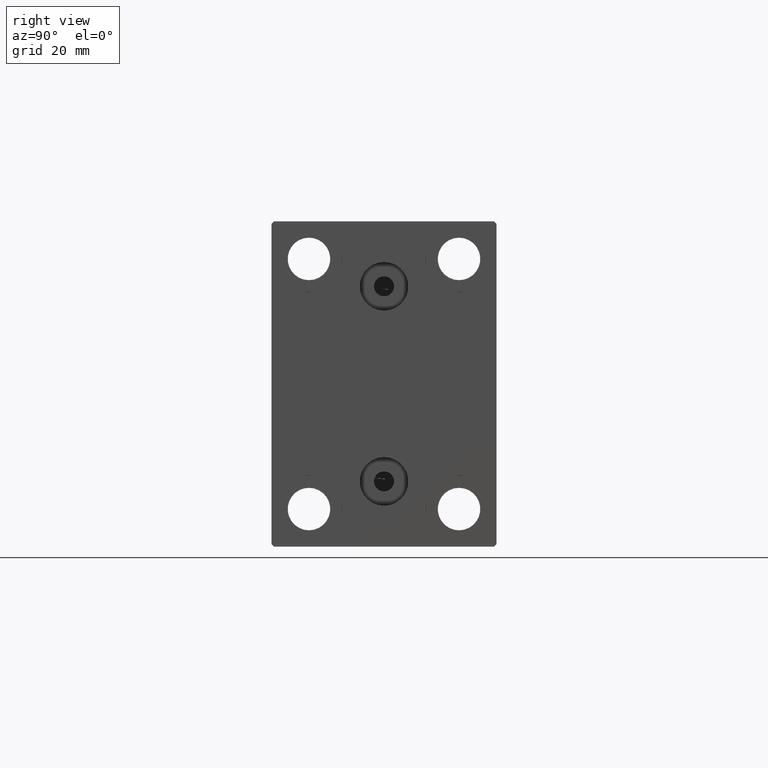
[diagram: clean part render]
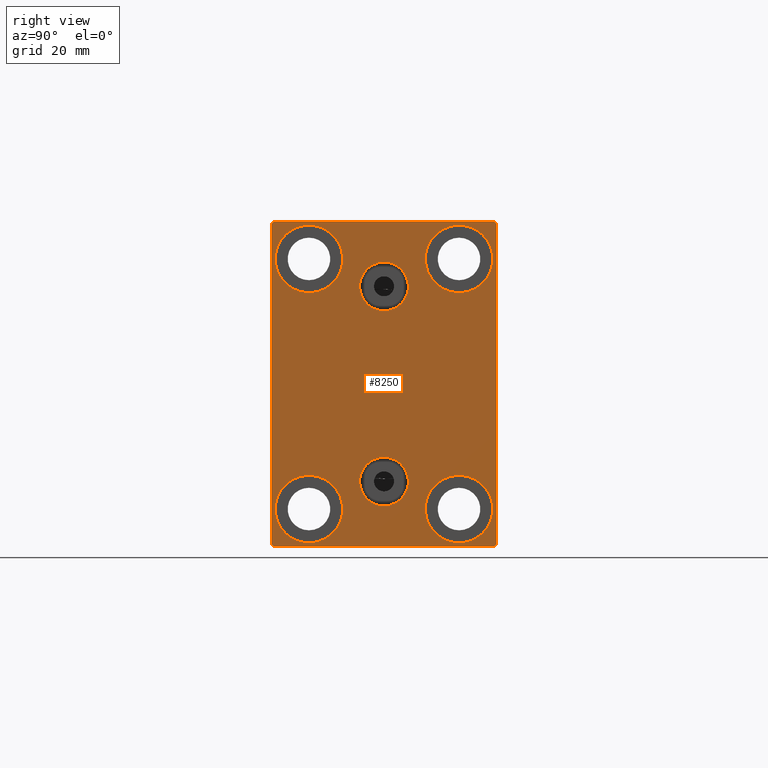
[diagram: same view with one face highlighted and labeled with its STEP entity id]
A machine part, right view. The second image highlights one B-rep face of the part: STEP entity #8250.
In plain terms, the highlighted planar face has unit normal (1, 0, 0).
Its self-contained STEP definition (entity closure, byte-faithful):
#26 = VERTEX_POINT ( 'NONE', #20619 ) ;
#40 = CIRCLE ( 'NONE', #39908, 6.749999999999999112 ) ;
#208 = VERTEX_POINT ( 'NONE', #20096 ) ;
#478 = DIRECTION ( 'NONE',  ( 0.000000000000000000, 0.000000000000000000, -1.000000000000000000 ) ) ;
#863 = DIRECTION ( 'NONE',  ( -0.000000000000000000, 0.7071067811865376918, 0.7071067811865574537 ) ) ;
#1539 = DIRECTION ( 'NONE',  ( -0.000000000000000000, -0.7071067811865425767, 0.7071067811865525687 ) ) ;
#1972 = CARTESIAN_POINT ( 'NONE',  ( 60.00000000000000000, 22.50000000000000000, -31.99999999999999289 ) ) ;
#2179 = DIRECTION ( 'NONE',  ( 0.000000000000000000, 0.000000000000000000, 1.000000000000000000 ) ) ;
#3007 = AXIS2_PLACEMENT_3D ( 'NONE', #19869, #37766, #2179 ) ;
#3100 = CARTESIAN_POINT ( 'NONE',  ( 60.00000000000000000, -3.571693674697836683E-15, 19.50000000000000355 ) ) ;
#3246 = FACE_BOUND ( 'NONE', #24140, .T. ) ;
#3705 = DIRECTION ( 'NONE',  ( 1.000000000000000000, 0.000000000000000000, -0.000000000000000000 ) ) ;
#3943 = CARTESIAN_POINT ( 'NONE',  ( 60.00000000000000000, 2.388061258337338150E-15, -19.49999999999999645 ) ) ;
#4373 = AXIS2_PLACEMENT_3D ( 'NONE', #26957, #12594, #15264 ) ;
#4502 = VECTOR ( 'NONE', #1539, 999.9999999999998863 ) ;
#4832 = DIRECTION ( 'NONE',  ( 0.000000000000000000, 1.000000000000000000, 0.000000000000000000 ) ) ;
#4874 = VERTEX_POINT ( 'NONE', #11064 ) ;
#5052 = LINE ( 'NONE', #19440, #45070 ) ;
#5329 = ORIENTED_EDGE ( 'NONE', *, *, #32999, .T. ) ;
#5584 = VERTEX_POINT ( 'NONE', #13293 ) ;
#5916 = VERTEX_POINT ( 'NONE', #18144 ) ;
#6001 = AXIS2_PLACEMENT_3D ( 'NONE', #21320, #29075, #32371 ) ;
#6163 = CIRCLE ( 'NONE', #40787, 6.749999999999999112 ) ;
#6241 = AXIS2_PLACEMENT_3D ( 'NONE', #29574, #43957, #26025 ) ;
#6341 = VECTOR ( 'NONE', #23923, 1000.000000000000000 ) ;
#6402 = DIRECTION ( 'NONE',  ( 1.000000000000000000, 0.000000000000000000, 0.000000000000000000 ) ) ;
#6918 = EDGE_CURVE ( 'NONE', #5584, #5916, #12613, .T. ) ;
#7322 = CARTESIAN_POINT ( 'NONE',  ( 60.00000000000000000, -3.571693674697836683E-15, 19.50000000000000355 ) ) ;
#7636 = ORIENTED_EDGE ( 'NONE', *, *, #13149, .T. ) ;
#8023 = LINE ( 'NONE', #25934, #45084 ) ;
#8217 = EDGE_CURVE ( 'NONE', #46550, #10622, #29145, .T. ) ;
#8250 = ADVANCED_FACE ( 'NONE', ( #3246, #17633, #39294, #17852, #32211, #14317, #28683 ), #30489, .T. ) ;
#8998 = VERTEX_POINT ( 'NONE', #21619 ) ;
#9320 = VERTEX_POINT ( 'NONE', #42784 ) ;
#9961 = AXIS2_PLACEMENT_3D ( 'NONE', #3943, #3705, #32450 ) ;
#10071 = VERTEX_POINT ( 'NONE', #30791 ) ;
#10386 = EDGE_CURVE ( 'NONE', #208, #4874, #5052, .T. ) ;
#10513 = DIRECTION ( 'NONE',  ( -1.000000000000000000, -0.000000000000000000, -0.000000000000000000 ) ) ;
#10619 = ORIENTED_EDGE ( 'NONE', *, *, #6918, .T. ) ;
#10622 = VERTEX_POINT ( 'NONE', #21296 ) ;
#11035 = ORIENTED_EDGE ( 'NONE', *, *, #28331, .T. ) ;
#11064 = CARTESIAN_POINT ( 'NONE',  ( 60.00000000000000000, -22.50000000000000711, 31.99999999999999289 ) ) ;
#11247 = DIRECTION ( 'NONE',  ( 0.000000000000000000, -1.067522139062650425E-16, 1.000000000000000000 ) ) ;
#11927 = LINE ( 'NONE', #40898, #4502 ) ;
#11953 = LINE ( 'NONE', #45337, #35577 ) ;
#12164 = EDGE_CURVE ( 'NONE', #8998, #26508, #36059, .T. ) ;
#12267 = DIRECTION ( 'NONE',  ( -1.000000000000000000, -0.000000000000000000, -0.000000000000000000 ) ) ;
#12386 = DIRECTION ( 'NONE',  ( 0.000000000000000000, -0.7071067811865474617, -0.7071067811865474617 ) ) ;
#12594 = DIRECTION ( 'NONE',  ( 1.000000000000000000, 0.000000000000000000, 0.000000000000000000 ) ) ;
#12613 = CIRCLE ( 'NONE', #16383, 6.749999999999999112 ) ;
#12831 = EDGE_CURVE ( 'NONE', #32411, #22277, #43983, .T. ) ;
#12843 = EDGE_CURVE ( 'NONE', #10622, #10071, #11927, .T. ) ;
#13149 = EDGE_CURVE ( 'NONE', #26788, #21779, #36877, .T. ) ;
#13222 = CARTESIAN_POINT ( 'NONE',  ( 60.00000000000000000, -15.00000000000000355, -18.25000000000000355 ) ) ;
#13293 = CARTESIAN_POINT ( 'NONE',  ( 60.00000000000000000, -14.99999999999999645, 18.25000000000000355 ) ) ;
#14317 = FACE_BOUND ( 'NONE', #31850, .T. ) ;
#14695 = CARTESIAN_POINT ( 'NONE',  ( 60.00000000000000000, 14.99999999999999645, -25.00000000000000000 ) ) ;
#14981 = CARTESIAN_POINT ( 'NONE',  ( 60.00000000000000000, 2.388061258337338150E-15, -19.49999999999999645 ) ) ;
#15206 = ORIENTED_EDGE ( 'NONE', *, *, #10386, .T. ) ;
#15235 = CARTESIAN_POINT ( 'NONE',  ( 60.00000000000000000, -22.50000000000000711, -32.50000000000000711 ) ) ;
#15264 = DIRECTION ( 'NONE',  ( 0.000000000000000000, 0.000000000000000000, -1.000000000000000000 ) ) ;
#15420 = ORIENTED_EDGE ( 'NONE', *, *, #38818, .T. ) ;
#15983 = CARTESIAN_POINT ( 'NONE',  ( 60.00000000000000000, 15.00000000000000355, 18.25000000000000355 ) ) ;
#16229 = DIRECTION ( 'NONE',  ( 0.000000000000000000, 0.000000000000000000, 1.000000000000000000 ) ) ;
#16383 = AXIS2_PLACEMENT_3D ( 'NONE', #33685, #12267, #23323 ) ;
#16918 = DIRECTION ( 'NONE',  ( -1.000000000000000000, -0.000000000000000000, -0.000000000000000000 ) ) ;
#17421 = ORIENTED_EDGE ( 'NONE', *, *, #46365, .T. ) ;
#17633 = FACE_BOUND ( 'NONE', #45392, .T. ) ;
#17765 = DIRECTION ( 'NONE',  ( 0.000000000000000000, 0.000000000000000000, 1.000000000000000000 ) ) ;
#17852 = FACE_BOUND ( 'NONE', #27824, .T. ) ;
#18144 = CARTESIAN_POINT ( 'NONE',  ( 60.00000000000000000, -14.99999999999999645, 31.75000000000000000 ) ) ;
#18270 = DIRECTION ( 'NONE',  ( 0.000000000000000000, 0.000000000000000000, 1.000000000000000000 ) ) ;
#19046 = CIRCLE ( 'NONE', #6241, 6.749999999999999112 ) ;
#19440 = CARTESIAN_POINT ( 'NONE',  ( 60.00000000000000000, -27.25000000000000000, 27.25000000000000000 ) ) ;
#19869 = CARTESIAN_POINT ( 'NONE',  ( 60.00000000000000000, 15.00000000000000355, 25.00000000000000000 ) ) ;
#20096 = CARTESIAN_POINT ( 'NONE',  ( 60.00000000000000000, -21.99999999999999289, 32.49999999999999289 ) ) ;
#20553 = CARTESIAN_POINT ( 'NONE',  ( 60.00000000000000000, 14.99999999999999645, -18.25000000000000355 ) ) ;
#20593 = EDGE_LOOP ( 'NONE', ( #37938, #28986 ) ) ;
#20619 = CARTESIAN_POINT ( 'NONE',  ( 60.00000000000000000, 2.983239602722951428E-15, -14.63999999999999702 ) ) ;
#21193 = AXIS2_PLACEMENT_3D ( 'NONE', #14695, #29055, #17765 ) ;
#21243 = DIRECTION ( 'NONE',  ( 0.000000000000000000, 0.000000000000000000, -1.000000000000000000 ) ) ;
#21296 = CARTESIAN_POINT ( 'NONE',  ( 60.00000000000000000, 22.49999999999999289, 31.99999999999999289 ) ) ;
#21320 = CARTESIAN_POINT ( 'NONE',  ( 60.00000000000000000, 15.00000000000000355, 25.00000000000000000 ) ) ;
#21441 = EDGE_CURVE ( 'NONE', #28190, #25018, #29544, .T. ) ;
#21566 = DIRECTION ( 'NONE',  ( 0.000000000000000000, 0.000000000000000000, 1.000000000000000000 ) ) ;
#21598 = ORIENTED_EDGE ( 'NONE', *, *, #12831, .T. ) ;
#21619 = CARTESIAN_POINT ( 'NONE',  ( 60.00000000000000000, -3.571693674697836683E-15, 14.64000000000000412 ) ) ;
#21735 = CARTESIAN_POINT ( 'NONE',  ( 60.00000000000000000, -22.50000000000000711, -32.00000000000000711 ) ) ;
#21779 = VERTEX_POINT ( 'NONE', #35310 ) ;
#21872 = EDGE_CURVE ( 'NONE', #25018, #28190, #41516, .T. ) ;
#22277 = VERTEX_POINT ( 'NONE', #26024 ) ;
#22498 = AXIS2_PLACEMENT_3D ( 'NONE', #7322, #6402, #32301 ) ;
#22558 = ORIENTED_EDGE ( 'NONE', *, *, #12164, .F. ) ;
#22790 = DIRECTION ( 'NONE',  ( 0.000000000000000000, 0.000000000000000000, 1.000000000000000000 ) ) ;
#22836 = VERTEX_POINT ( 'NONE', #25565 ) ;
#23018 = CARTESIAN_POINT ( 'NONE',  ( 60.00000000000000000, 14.99999999999999645, -25.00000000000000000 ) ) ;
#23323 = DIRECTION ( 'NONE',  ( 0.000000000000000000, 0.000000000000000000, 1.000000000000000000 ) ) ;
#23923 = DIRECTION ( 'NONE',  ( -0.000000000000000000, 0.7071067811865378028, -0.7071067811865573427 ) ) ;
#24140 = EDGE_LOOP ( 'NONE', ( #22558, #40532 ) ) ;
#24735 = ORIENTED_EDGE ( 'NONE', *, *, #39861, .T. ) ;
#24759 = EDGE_LOOP ( 'NONE', ( #7636, #36472 ) ) ;
#25018 = VERTEX_POINT ( 'NONE', #45047 ) ;
#25347 = EDGE_LOOP ( 'NONE', ( #35890, #15206, #11035, #17421, #21598, #41858, #34932, #36444 ) ) ;
#25565 = CARTESIAN_POINT ( 'NONE',  ( 60.00000000000000000, 2.388061258337338150E-15, -24.35999999999999588 ) ) ;
#25934 = CARTESIAN_POINT ( 'NONE',  ( 60.00000000000000000, -22.50000000000000711, 32.49999999999999289 ) ) ;
#26009 = LINE ( 'NONE', #33546, #28030 ) ;
#26024 = CARTESIAN_POINT ( 'NONE',  ( 60.00000000000000000, 21.99999999999998579, -32.50000000000000711 ) ) ;
#26025 = DIRECTION ( 'NONE',  ( 0.000000000000000000, 0.000000000000000000, 1.000000000000000000 ) ) ;
#26508 = VERTEX_POINT ( 'NONE', #39645 ) ;
#26557 = DIRECTION ( 'NONE',  ( -1.000000000000000000, -0.000000000000000000, -0.000000000000000000 ) ) ;
#26788 = VERTEX_POINT ( 'NONE', #15983 ) ;
#26957 = CARTESIAN_POINT ( 'NONE',  ( 60.00000000000000000, 0.000000000000000000, 0.000000000000000000 ) ) ;
#27824 = EDGE_LOOP ( 'NONE', ( #10619, #5329 ) ) ;
#28030 = VECTOR ( 'NONE', #39916, 1000.000000000000000 ) ;
#28190 = VERTEX_POINT ( 'NONE', #20553 ) ;
#28331 = EDGE_CURVE ( 'NONE', #4874, #39032, #8023, .T. ) ;
#28683 = FACE_OUTER_BOUND ( 'NONE', #25347, .T. ) ;
#28720 = AXIS2_PLACEMENT_3D ( 'NONE', #23018, #26557, #22790 ) ;
#28986 = ORIENTED_EDGE ( 'NONE', *, *, #21441, .T. ) ;
#28992 = EDGE_CURVE ( 'NONE', #26508, #8998, #46582, .T. ) ;
#29055 = DIRECTION ( 'NONE',  ( -1.000000000000000000, -0.000000000000000000, -0.000000000000000000 ) ) ;
#29075 = DIRECTION ( 'NONE',  ( -1.000000000000000000, -0.000000000000000000, -0.000000000000000000 ) ) ;
#29145 = LINE ( 'NONE', #43529, #36736 ) ;
#29339 = DIRECTION ( 'NONE',  ( 1.000000000000000000, 0.000000000000000000, -0.000000000000000000 ) ) ;
#29488 = CIRCLE ( 'NONE', #9961, 4.859999999999999432 ) ;
#29544 = CIRCLE ( 'NONE', #21193, 6.749999999999999112 ) ;
#29574 = CARTESIAN_POINT ( 'NONE',  ( 60.00000000000000000, -15.00000000000000355, -25.00000000000000000 ) ) ;
#30489 = PLANE ( 'NONE',  #4373 ) ;
#30791 = CARTESIAN_POINT ( 'NONE',  ( 60.00000000000000000, 21.99999999999999289, 32.50000000000000000 ) ) ;
#31126 = EDGE_CURVE ( 'NONE', #21779, #26788, #42147, .T. ) ;
#31289 = VERTEX_POINT ( 'NONE', #13222 ) ;
#31561 = AXIS2_PLACEMENT_3D ( 'NONE', #3100, #34919, #21243 ) ;
#31850 = EDGE_LOOP ( 'NONE', ( #15420, #24735 ) ) ;
#32211 = FACE_BOUND ( 'NONE', #24759, .T. ) ;
#32301 = DIRECTION ( 'NONE',  ( 0.000000000000000000, 0.000000000000000000, -1.000000000000000000 ) ) ;
#32371 = DIRECTION ( 'NONE',  ( 0.000000000000000000, 0.000000000000000000, 1.000000000000000000 ) ) ;
#32411 = VERTEX_POINT ( 'NONE', #43381 ) ;
#32450 = DIRECTION ( 'NONE',  ( 0.000000000000000000, 0.000000000000000000, 1.000000000000000000 ) ) ;
#32480 = ORIENTED_EDGE ( 'NONE', *, *, #36355, .F. ) ;
#32501 = AXIS2_PLACEMENT_3D ( 'NONE', #14981, #29339, #18270 ) ;
#32865 = CARTESIAN_POINT ( 'NONE',  ( 60.00000000000000000, -15.00000000000000355, -25.00000000000000000 ) ) ;
#32999 = EDGE_CURVE ( 'NONE', #5916, #5584, #40, .T. ) ;
#33546 = CARTESIAN_POINT ( 'NONE',  ( 60.00000000000000000, 22.49999999999999289, 32.50000000000000000 ) ) ;
#33685 = CARTESIAN_POINT ( 'NONE',  ( 60.00000000000000000, -14.99999999999999645, 25.00000000000000000 ) ) ;
#33878 = ORIENTED_EDGE ( 'NONE', *, *, #39841, .F. ) ;
#34532 = CARTESIAN_POINT ( 'NONE',  ( 60.00000000000000000, -27.25000000000032330, -27.24999999999957012 ) ) ;
#34919 = DIRECTION ( 'NONE',  ( 1.000000000000000000, 0.000000000000000000, 0.000000000000000000 ) ) ;
#34932 = ORIENTED_EDGE ( 'NONE', *, *, #8217, .T. ) ;
#35050 = CARTESIAN_POINT ( 'NONE',  ( 60.00000000000000000, -14.99999999999999645, 25.00000000000000000 ) ) ;
#35310 = CARTESIAN_POINT ( 'NONE',  ( 60.00000000000000000, 15.00000000000000355, 31.75000000000000000 ) ) ;
#35577 = VECTOR ( 'NONE', #863, 999.9999999999998863 ) ;
#35890 = ORIENTED_EDGE ( 'NONE', *, *, #37347, .T. ) ;
#36059 = CIRCLE ( 'NONE', #31561, 4.859999999999999432 ) ;
#36355 = EDGE_CURVE ( 'NONE', #22836, #26, #29488, .T. ) ;
#36444 = ORIENTED_EDGE ( 'NONE', *, *, #12843, .T. ) ;
#36472 = ORIENTED_EDGE ( 'NONE', *, *, #31126, .T. ) ;
#36736 = VECTOR ( 'NONE', #11247, 1000.000000000000000 ) ;
#36877 = CIRCLE ( 'NONE', #3007, 6.749999999999999112 ) ;
#37347 = EDGE_CURVE ( 'NONE', #10071, #208, #26009, .T. ) ;
#37766 = DIRECTION ( 'NONE',  ( -1.000000000000000000, -0.000000000000000000, -0.000000000000000000 ) ) ;
#37938 = ORIENTED_EDGE ( 'NONE', *, *, #21872, .T. ) ;
#38818 = EDGE_CURVE ( 'NONE', #9320, #31289, #19046, .T. ) ;
#39002 = LINE ( 'NONE', #34532, #6341 ) ;
#39032 = VERTEX_POINT ( 'NONE', #21735 ) ;
#39294 = FACE_BOUND ( 'NONE', #20593, .T. ) ;
#39645 = CARTESIAN_POINT ( 'NONE',  ( 60.00000000000000000, -2.976515330312223406E-15, 24.36000000000000298 ) ) ;
#39841 = EDGE_CURVE ( 'NONE', #26, #22836, #44573, .T. ) ;
#39861 = EDGE_CURVE ( 'NONE', #31289, #9320, #6163, .T. ) ;
#39908 = AXIS2_PLACEMENT_3D ( 'NONE', #35050, #16918, #16229 ) ;
#39916 = DIRECTION ( 'NONE',  ( 0.000000000000000000, -1.000000000000000000, -1.541976423090495387E-16 ) ) ;
#40532 = ORIENTED_EDGE ( 'NONE', *, *, #28992, .F. ) ;
#40787 = AXIS2_PLACEMENT_3D ( 'NONE', #32865, #10513, #21566 ) ;
#40898 = CARTESIAN_POINT ( 'NONE',  ( 60.00000000000000000, 27.25000000000014921, 27.24999999999976907 ) ) ;
#41516 = CIRCLE ( 'NONE', #28720, 6.749999999999999112 ) ;
#41858 = ORIENTED_EDGE ( 'NONE', *, *, #42564, .T. ) ;
#42147 = CIRCLE ( 'NONE', #6001, 6.749999999999999112 ) ;
#42564 = EDGE_CURVE ( 'NONE', #22277, #46550, #11953, .T. ) ;
#42784 = CARTESIAN_POINT ( 'NONE',  ( 60.00000000000000000, -15.00000000000000355, -31.75000000000000000 ) ) ;
#42894 = VECTOR ( 'NONE', #4832, 1000.000000000000000 ) ;
#43381 = CARTESIAN_POINT ( 'NONE',  ( 60.00000000000000000, -22.00000000000002132, -32.50000000000000711 ) ) ;
#43529 = CARTESIAN_POINT ( 'NONE',  ( 60.00000000000000000, 22.50000000000000000, -32.50000000000000711 ) ) ;
#43957 = DIRECTION ( 'NONE',  ( -1.000000000000000000, -0.000000000000000000, -0.000000000000000000 ) ) ;
#43983 = LINE ( 'NONE', #15235, #42894 ) ;
#44573 = CIRCLE ( 'NONE', #32501, 4.859999999999999432 ) ;
#45047 = CARTESIAN_POINT ( 'NONE',  ( 60.00000000000000000, 14.99999999999999645, -31.75000000000000000 ) ) ;
#45070 = VECTOR ( 'NONE', #12386, 1000.000000000000114 ) ;
#45084 = VECTOR ( 'NONE', #478, 1000.000000000000000 ) ;
#45337 = CARTESIAN_POINT ( 'NONE',  ( 60.00000000000000000, 27.25000000000030553, -27.24999999999954881 ) ) ;
#45392 = EDGE_LOOP ( 'NONE', ( #32480, #33878 ) ) ;
#46365 = EDGE_CURVE ( 'NONE', #39032, #32411, #39002, .T. ) ;
#46550 = VERTEX_POINT ( 'NONE', #1972 ) ;
#46582 = CIRCLE ( 'NONE', #22498, 4.859999999999999432 ) ;